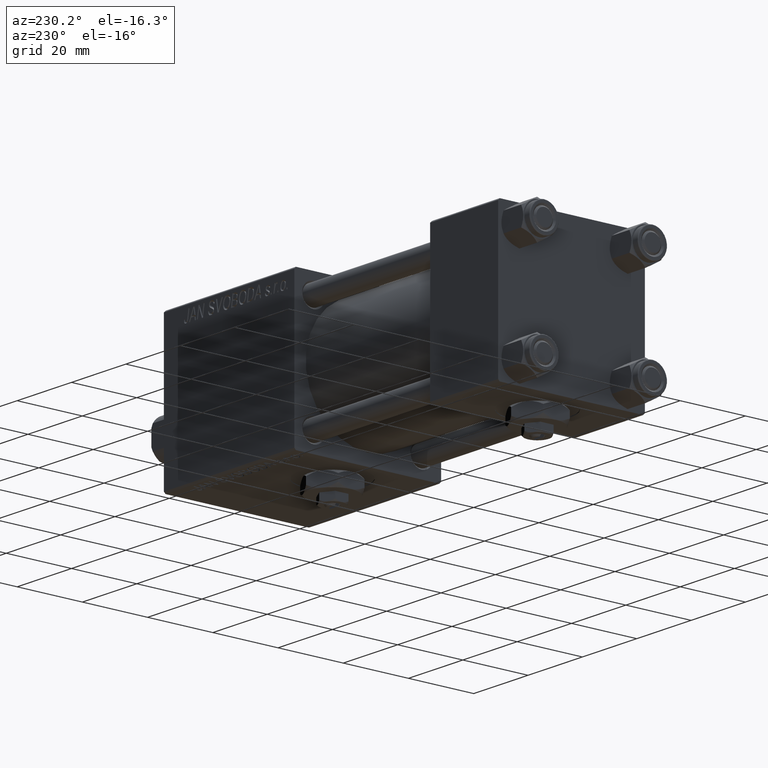
[diagram: clean part render]
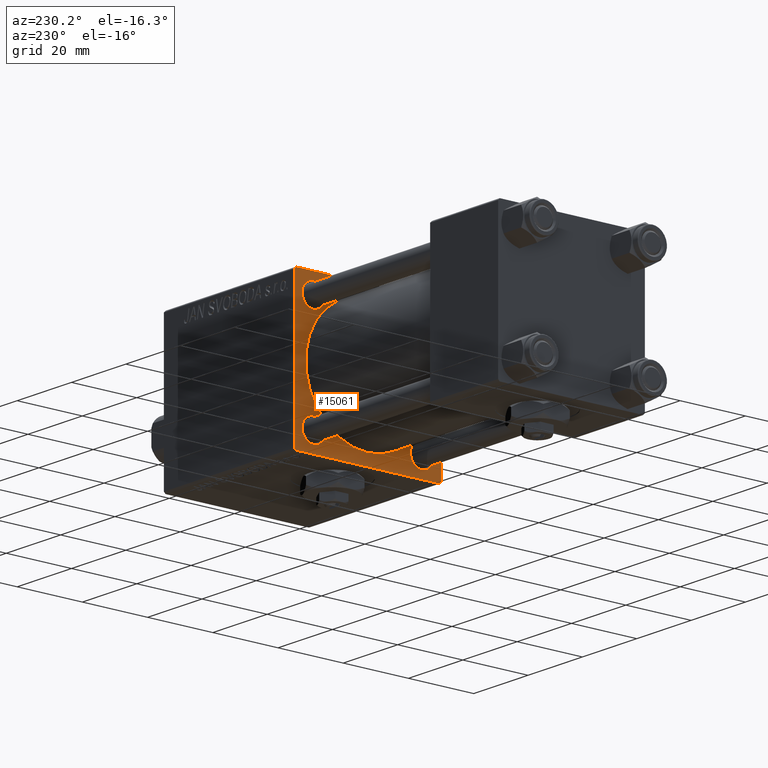
[diagram: same view with one face highlighted and labeled with its STEP entity id]
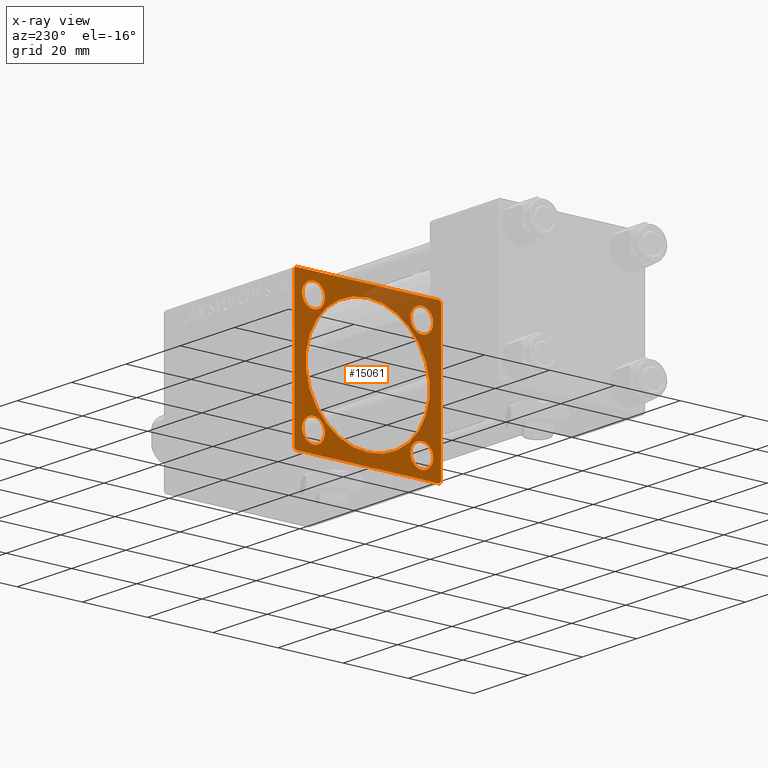
[diagram: x-ray of the same camera — body ghosted, the highlighted face saturated]
A machine part, auxiliary view. The second image highlights one B-rep face of the part: STEP entity #15061.
The next image is the same camera in x-ray: the body ghosted, the highlighted face saturated — about 37% of this face is hidden behind the body in this view.
In plain terms, the highlighted planar face has unit normal (-1, 0, 0).
Its self-contained STEP definition (entity closure, byte-faithful):
#145 = VERTEX_POINT ( 'NONE', #14766 ) ;
#163 = LINE ( 'NONE', #7813, #32842 ) ;
#294 = EDGE_LOOP ( 'NONE', ( #44614, #47015 ) ) ;
#443 = AXIS2_PLACEMENT_3D ( 'NONE', #2496, #14614, #46820 ) ;
#605 = EDGE_CURVE ( 'NONE', #38273, #19779, #33920, .T. ) ;
#886 = ORIENTED_EDGE ( 'NONE', *, *, #30498, .T. ) ;
#1191 = EDGE_CURVE ( 'NONE', #51505, #18814, #17800, .T. ) ;
#1479 = ORIENTED_EDGE ( 'NONE', *, *, #31331, .T. ) ;
#2213 = EDGE_LOOP ( 'NONE', ( #1479, #41484, #46794, #38729, #47916, #9899, #35475, #8573 ) ) ;
#2496 = CARTESIAN_POINT ( 'NONE',  ( 75.00000000000001421, -16.59999999999999076, -16.60000000000000853 ) ) ;
#2921 = ORIENTED_EDGE ( 'NONE', *, *, #25859, .T. ) ;
#3282 = EDGE_LOOP ( 'NONE', ( #16422, #22997 ) ) ;
#3471 = EDGE_CURVE ( 'NONE', #40345, #37931, #6711, .T. ) ;
#3602 = AXIS2_PLACEMENT_3D ( 'NONE', #33204, #49320, #29259 ) ;
#3761 = VERTEX_POINT ( 'NONE', #51728 ) ;
#3772 = CARTESIAN_POINT ( 'NONE',  ( 75.00000000000001421, -16.59999999999999076, -16.60000000000000853 ) ) ;
#3874 = EDGE_CURVE ( 'NONE', #24787, #3761, #50762, .T. ) ;
#3911 = VERTEX_POINT ( 'NONE', #9707 ) ;
#4363 = AXIS2_PLACEMENT_3D ( 'NONE', #43213, #26588, #47175 ) ;
#4662 = CARTESIAN_POINT ( 'NONE',  ( 75.00000000000001421, 22.50000000000000355, 21.99999999999997513 ) ) ;
#6449 = CARTESIAN_POINT ( 'NONE',  ( 75.00000000000001421, 22.50000000000000355, -22.49999999999999645 ) ) ;
#6599 = ORIENTED_EDGE ( 'NONE', *, *, #27887, .T. ) ;
#6711 = LINE ( 'NONE', #11181, #10286 ) ;
#7194 = CARTESIAN_POINT ( 'NONE',  ( 75.00000000000001421, -16.59999999999999076, -20.10000000000001563 ) ) ;
#7556 = VECTOR ( 'NONE', #50788, 1000.000000000000000 ) ;
#7813 = CARTESIAN_POINT ( 'NONE',  ( 75.00000000000001421, 22.50000000000000355, 22.50000000000000355 ) ) ;
#8216 = VERTEX_POINT ( 'NONE', #42422 ) ;
#8296 = DIRECTION ( 'NONE',  ( 0.000000000000000000, 0.000000000000000000, -1.000000000000000000 ) ) ;
#8385 = AXIS2_PLACEMENT_3D ( 'NONE', #30723, #51321, #42598 ) ;
#8573 = ORIENTED_EDGE ( 'NONE', *, *, #40726, .T. ) ;
#9180 = CIRCLE ( 'NONE', #47949, 3.500000000000010214 ) ;
#9707 = CARTESIAN_POINT ( 'NONE',  ( 75.00000000000001421, -22.49999999999999645, -21.99999999999997868 ) ) ;
#9786 = FACE_BOUND ( 'NONE', #294, .T. ) ;
#9899 = ORIENTED_EDGE ( 'NONE', *, *, #605, .T. ) ;
#9906 = DIRECTION ( 'NONE',  ( 0.000000000000000000, 0.000000000000000000, 1.000000000000000000 ) ) ;
#10163 = DIRECTION ( 'NONE',  ( 1.000000000000000000, 0.000000000000000000, 0.000000000000000000 ) ) ;
#10286 = VECTOR ( 'NONE', #35214, 1000.000000000000000 ) ;
#10291 = VERTEX_POINT ( 'NONE', #26772 ) ;
#10333 = EDGE_CURVE ( 'NONE', #32484, #34142, #16440, .T. ) ;
#10892 = VECTOR ( 'NONE', #14901, 999.9999999999998863 ) ;
#11181 = CARTESIAN_POINT ( 'NONE',  ( 75.00000000000001421, -22.24999999999969447, 22.25000000000030909 ) ) ;
#11368 = EDGE_CURVE ( 'NONE', #40345, #3911, #15942, .T. ) ;
#13992 = CIRCLE ( 'NONE', #40981, 19.00000000000000000 ) ;
#14256 = FACE_BOUND ( 'NONE', #3282, .T. ) ;
#14366 = LINE ( 'NONE', #42878, #10892 ) ;
#14406 = CARTESIAN_POINT ( 'NONE',  ( 75.00000000000001421, -16.59999999999999076, -13.09999999999999787 ) ) ;
#14614 = DIRECTION ( 'NONE',  ( 1.000000000000000000, -0.000000000000000000, 0.000000000000000000 ) ) ;
#14704 = DIRECTION ( 'NONE',  ( -0.000000000000000000, -0.7071067811865573427, -0.7071067811865378028 ) ) ;
#14766 = CARTESIAN_POINT ( 'NONE',  ( 75.00000000000001421, -21.99999999999998224, -22.50000000000000000 ) ) ;
#14901 = DIRECTION ( 'NONE',  ( 0.000000000000000000, -0.7071067811865425767, 0.7071067811865525687 ) ) ;
#15061 = ADVANCED_FACE ( 'NONE', ( #9786, #38803, #22978, #14256, #51224, #30363 ), #46982, .T. ) ;
#15942 = LINE ( 'NONE', #32044, #19107 ) ;
#16422 = ORIENTED_EDGE ( 'NONE', *, *, #32502, .T. ) ;
#16440 = CIRCLE ( 'NONE', #443, 3.500000000000010214 ) ;
#16942 = CARTESIAN_POINT ( 'NONE',  ( 75.00000000000001421, -2.602085213965210642E-15, 19.00000000000000000 ) ) ;
#16960 = ORIENTED_EDGE ( 'NONE', *, *, #3874, .T. ) ;
#17058 = ORIENTED_EDGE ( 'NONE', *, *, #27535, .T. ) ;
#17752 = VERTEX_POINT ( 'NONE', #46834 ) ;
#17800 = CIRCLE ( 'NONE', #4363, 3.500000000000013323 ) ;
#18006 = ORIENTED_EDGE ( 'NONE', *, *, #19963, .T. ) ;
#18348 = DIRECTION ( 'NONE',  ( 0.000000000000000000, 0.7071067811865573427, -0.7071067811865378028 ) ) ;
#18814 = VERTEX_POINT ( 'NONE', #36847 ) ;
#19021 = CARTESIAN_POINT ( 'NONE',  ( 75.00000000000001421, 0.000000000000000000, 0.000000000000000000 ) ) ;
#19107 = VECTOR ( 'NONE', #48144, 1000.000000000000000 ) ;
#19368 = AXIS2_PLACEMENT_3D ( 'NONE', #24858, #33028, #48347 ) ;
#19642 = VERTEX_POINT ( 'NONE', #43475 ) ;
#19779 = VERTEX_POINT ( 'NONE', #4662 ) ;
#19963 = EDGE_CURVE ( 'NONE', #50520, #8216, #13992, .T. ) ;
#20189 = CARTESIAN_POINT ( 'NONE',  ( 75.00000000000001421, -2.602085213965210642E-15, 0.000000000000000000 ) ) ;
#20232 = DIRECTION ( 'NONE',  ( 0.000000000000000000, 0.000000000000000000, -1.000000000000000000 ) ) ;
#22714 = CARTESIAN_POINT ( 'NONE',  ( 75.00000000000001421, 16.59999999999999787, 16.60000000000000497 ) ) ;
#22978 = FACE_BOUND ( 'NONE', #23711, .T. ) ;
#22997 = ORIENTED_EDGE ( 'NONE', *, *, #10333, .T. ) ;
#23235 = DIRECTION ( 'NONE',  ( 1.000000000000000000, -0.000000000000000000, 0.000000000000000000 ) ) ;
#23344 = LINE ( 'NONE', #6449, #7556 ) ;
#23372 = CARTESIAN_POINT ( 'NONE',  ( 75.00000000000001421, 16.59999999999999787, 20.10000000000001208 ) ) ;
#23711 = EDGE_LOOP ( 'NONE', ( #16960, #2921 ) ) ;
#24787 = VERTEX_POINT ( 'NONE', #27631 ) ;
#24858 = CARTESIAN_POINT ( 'NONE',  ( 75.00000000000001421, -16.59999999999999076, 16.60000000000000853 ) ) ;
#25859 = EDGE_CURVE ( 'NONE', #3761, #24787, #9180, .T. ) ;
#25891 = DIRECTION ( 'NONE',  ( -0.000000000000000000, 0.000000000000000000, 1.000000000000000000 ) ) ;
#26014 = CARTESIAN_POINT ( 'NONE',  ( 75.00000000000001421, -2.602085213965210642E-15, 0.000000000000000000 ) ) ;
#26588 = DIRECTION ( 'NONE',  ( 1.000000000000000000, -0.000000000000000000, 0.000000000000000000 ) ) ;
#26772 = CARTESIAN_POINT ( 'NONE',  ( 75.00000000000001421, 22.00000000000000355, -22.49999999999999645 ) ) ;
#26843 = EDGE_CURVE ( 'NONE', #145, #3911, #14366, .T. ) ;
#27275 = EDGE_CURVE ( 'NONE', #18814, #51505, #48860, .T. ) ;
#27535 = EDGE_CURVE ( 'NONE', #17752, #41811, #30307, .T. ) ;
#27631 = CARTESIAN_POINT ( 'NONE',  ( 75.00000000000001421, 16.59999999999999787, -13.09999999999999432 ) ) ;
#27887 = EDGE_CURVE ( 'NONE', #8216, #50520, #30191, .T. ) ;
#28828 = DIRECTION ( 'NONE',  ( 0.000000000000000000, 0.000000000000000000, 1.000000000000000000 ) ) ;
#29259 = DIRECTION ( 'NONE',  ( 0.000000000000000000, 0.000000000000000000, 1.000000000000000000 ) ) ;
#30182 = EDGE_CURVE ( 'NONE', #19779, #19642, #163, .T. ) ;
#30191 = CIRCLE ( 'NONE', #34399, 19.00000000000000000 ) ;
#30307 = CIRCLE ( 'NONE', #32844, 3.500000000000010214 ) ;
#30363 = FACE_OUTER_BOUND ( 'NONE', #2213, .T. ) ;
#30473 = CARTESIAN_POINT ( 'NONE',  ( 75.00000000000001421, 16.59999999999999787, -16.60000000000000497 ) ) ;
#30498 = EDGE_CURVE ( 'NONE', #41811, #17752, #52214, .T. ) ;
#30723 = CARTESIAN_POINT ( 'NONE',  ( 75.00000000000001421, 16.59999999999999787, 16.60000000000000497 ) ) ;
#30824 = DIRECTION ( 'NONE',  ( 0.000000000000000000, -1.000000000000000000, -2.312964634635742957E-16 ) ) ;
#31331 = EDGE_CURVE ( 'NONE', #10291, #145, #23344, .T. ) ;
#32044 = CARTESIAN_POINT ( 'NONE',  ( 75.00000000000001421, -22.49999999999999645, 22.49999999999999289 ) ) ;
#32328 = VECTOR ( 'NONE', #14704, 1000.000000000000000 ) ;
#32484 = VERTEX_POINT ( 'NONE', #7194 ) ;
#32502 = EDGE_CURVE ( 'NONE', #34142, #32484, #35436, .T. ) ;
#32842 = VECTOR ( 'NONE', #20232, 1000.000000000000000 ) ;
#32844 = AXIS2_PLACEMENT_3D ( 'NONE', #22714, #23235, #35369 ) ;
#32908 = AXIS2_PLACEMENT_3D ( 'NONE', #3772, #48105, #28828 ) ;
#33028 = DIRECTION ( 'NONE',  ( 1.000000000000000000, -0.000000000000000000, 0.000000000000000000 ) ) ;
#33204 = CARTESIAN_POINT ( 'NONE',  ( 75.00000000000001421, 16.59999999999999787, -16.60000000000000497 ) ) ;
#33920 = LINE ( 'NONE', #34690, #38856 ) ;
#33993 = CARTESIAN_POINT ( 'NONE',  ( 75.00000000000001421, 22.50000000000000355, 22.50000000000000355 ) ) ;
#34142 = VERTEX_POINT ( 'NONE', #14406 ) ;
#34399 = AXIS2_PLACEMENT_3D ( 'NONE', #26014, #10163, #42361 ) ;
#34690 = CARTESIAN_POINT ( 'NONE',  ( 75.00000000000001421, 22.24999999999968026, 22.25000000000029488 ) ) ;
#34787 = EDGE_LOOP ( 'NONE', ( #886, #17058 ) ) ;
#35214 = DIRECTION ( 'NONE',  ( -0.000000000000000000, 0.7071067811865573427, 0.7071067811865378028 ) ) ;
#35369 = DIRECTION ( 'NONE',  ( 0.000000000000000000, 0.000000000000000000, 1.000000000000000000 ) ) ;
#35436 = CIRCLE ( 'NONE', #32908, 3.500000000000010214 ) ;
#35475 = ORIENTED_EDGE ( 'NONE', *, *, #30182, .T. ) ;
#36273 = DIRECTION ( 'NONE',  ( 1.000000000000000000, 0.000000000000000000, 0.000000000000000000 ) ) ;
#36847 = CARTESIAN_POINT ( 'NONE',  ( 75.00000000000001421, -16.59999999999999076, 13.09999999999999432 ) ) ;
#37931 = VERTEX_POINT ( 'NONE', #46934 ) ;
#38207 = LINE ( 'NONE', #50358, #32328 ) ;
#38273 = VERTEX_POINT ( 'NONE', #39748 ) ;
#38543 = DIRECTION ( 'NONE',  ( -1.000000000000000000, 0.000000000000000000, -0.000000000000000000 ) ) ;
#38729 = ORIENTED_EDGE ( 'NONE', *, *, #3471, .T. ) ;
#38803 = FACE_BOUND ( 'NONE', #34787, .T. ) ;
#38856 = VECTOR ( 'NONE', #18348, 1000.000000000000000 ) ;
#39748 = CARTESIAN_POINT ( 'NONE',  ( 75.00000000000001421, 21.99999999999996092, 22.50000000000000355 ) ) ;
#40345 = VERTEX_POINT ( 'NONE', #44648 ) ;
#40726 = EDGE_CURVE ( 'NONE', #19642, #10291, #38207, .T. ) ;
#40802 = VECTOR ( 'NONE', #30824, 1000.000000000000000 ) ;
#40981 = AXIS2_PLACEMENT_3D ( 'NONE', #20189, #36273, #8296 ) ;
#41406 = EDGE_CURVE ( 'NONE', #38273, #37931, #42431, .T. ) ;
#41484 = ORIENTED_EDGE ( 'NONE', *, *, #26843, .T. ) ;
#41811 = VERTEX_POINT ( 'NONE', #23372 ) ;
#42361 = DIRECTION ( 'NONE',  ( 0.000000000000000000, 0.000000000000000000, -1.000000000000000000 ) ) ;
#42422 = CARTESIAN_POINT ( 'NONE',  ( 75.00000000000001421, -2.752562955852396712E-16, -19.00000000000000000 ) ) ;
#42431 = LINE ( 'NONE', #33993, #40802 ) ;
#42598 = DIRECTION ( 'NONE',  ( 0.000000000000000000, 0.000000000000000000, 1.000000000000000000 ) ) ;
#42878 = CARTESIAN_POINT ( 'NONE',  ( 75.00000000000001421, -22.25000000000015277, -22.24999999999984013 ) ) ;
#43213 = CARTESIAN_POINT ( 'NONE',  ( 75.00000000000001421, -16.59999999999999076, 16.60000000000000853 ) ) ;
#43475 = CARTESIAN_POINT ( 'NONE',  ( 75.00000000000001421, 22.50000000000000355, -21.99999999999999645 ) ) ;
#44614 = ORIENTED_EDGE ( 'NONE', *, *, #1191, .T. ) ;
#44648 = CARTESIAN_POINT ( 'NONE',  ( 75.00000000000001421, -22.49999999999999645, 22.00000000000000711 ) ) ;
#45714 = EDGE_LOOP ( 'NONE', ( #18006, #6599 ) ) ;
#46056 = DIRECTION ( 'NONE',  ( 1.000000000000000000, -0.000000000000000000, 0.000000000000000000 ) ) ;
#46794 = ORIENTED_EDGE ( 'NONE', *, *, #11368, .F. ) ;
#46820 = DIRECTION ( 'NONE',  ( 0.000000000000000000, 0.000000000000000000, 1.000000000000000000 ) ) ;
#46834 = CARTESIAN_POINT ( 'NONE',  ( 75.00000000000001421, 16.59999999999999787, 13.09999999999999432 ) ) ;
#46934 = CARTESIAN_POINT ( 'NONE',  ( 75.00000000000001421, -21.99999999999998224, 22.49999999999999289 ) ) ;
#46982 = PLANE ( 'NONE',  #47564 ) ;
#47015 = ORIENTED_EDGE ( 'NONE', *, *, #27275, .T. ) ;
#47175 = DIRECTION ( 'NONE',  ( 0.000000000000000000, 0.000000000000000000, 1.000000000000000000 ) ) ;
#47564 = AXIS2_PLACEMENT_3D ( 'NONE', #19021, #38543, #25891 ) ;
#47916 = ORIENTED_EDGE ( 'NONE', *, *, #41406, .F. ) ;
#47917 = CARTESIAN_POINT ( 'NONE',  ( 75.00000000000001421, -16.59999999999999076, 20.10000000000001918 ) ) ;
#47949 = AXIS2_PLACEMENT_3D ( 'NONE', #30473, #46056, #9906 ) ;
#48105 = DIRECTION ( 'NONE',  ( 1.000000000000000000, -0.000000000000000000, 0.000000000000000000 ) ) ;
#48144 = DIRECTION ( 'NONE',  ( 0.000000000000000000, 0.000000000000000000, -1.000000000000000000 ) ) ;
#48347 = DIRECTION ( 'NONE',  ( 0.000000000000000000, 0.000000000000000000, 1.000000000000000000 ) ) ;
#48860 = CIRCLE ( 'NONE', #19368, 3.500000000000013323 ) ;
#49320 = DIRECTION ( 'NONE',  ( 1.000000000000000000, -0.000000000000000000, 0.000000000000000000 ) ) ;
#50358 = CARTESIAN_POINT ( 'NONE',  ( 75.00000000000001421, 22.24999999999969802, -22.25000000000031619 ) ) ;
#50520 = VERTEX_POINT ( 'NONE', #16942 ) ;
#50762 = CIRCLE ( 'NONE', #3602, 3.500000000000010214 ) ;
#50788 = DIRECTION ( 'NONE',  ( 0.000000000000000000, -1.000000000000000000, -7.709882115452476934E-17 ) ) ;
#51224 = FACE_BOUND ( 'NONE', #45714, .T. ) ;
#51321 = DIRECTION ( 'NONE',  ( 1.000000000000000000, -0.000000000000000000, 0.000000000000000000 ) ) ;
#51505 = VERTEX_POINT ( 'NONE', #47917 ) ;
#51728 = CARTESIAN_POINT ( 'NONE',  ( 75.00000000000001421, 16.59999999999999787, -20.10000000000001208 ) ) ;
#52214 = CIRCLE ( 'NONE', #8385, 3.500000000000010214 ) ;